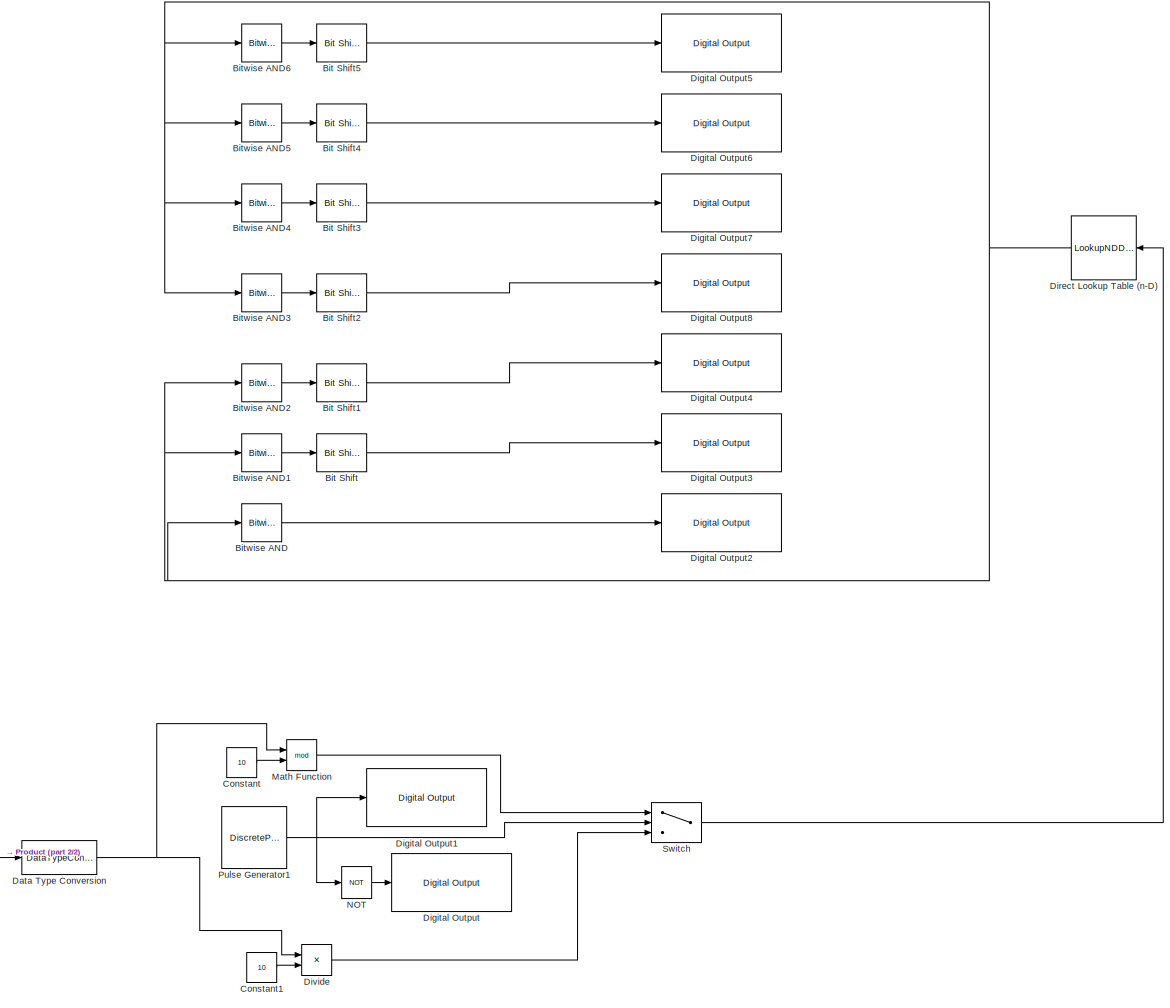
[diagram: root canvas - part 1/2, right side, full height]
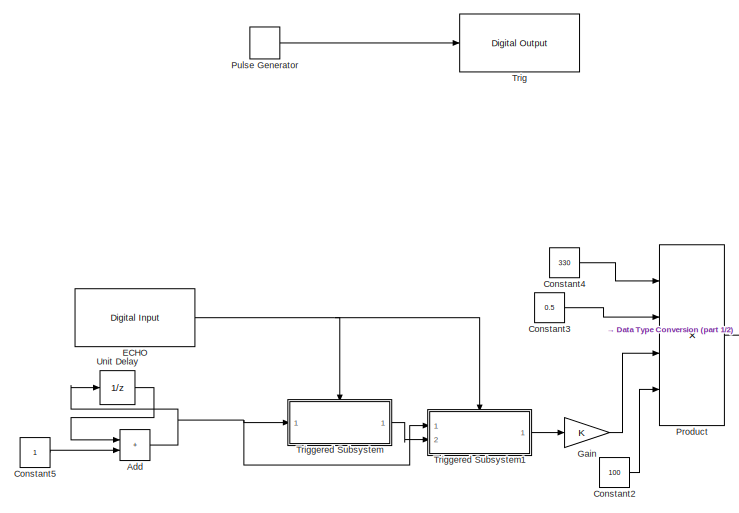
[diagram: root canvas - part 2/2, middle left region]
MODEL slx_f98a3cfd1c5f
KIND model
CONFIG AbsTol = auto
CONFIG EnableMultiTasking = on
CONFIG FixedStep = 0.00025
CONFIG MaxStep = auto
CONFIG MinStep = auto
CONFIG RelTol = 1e-3
CONFIG SampleTimeConstraint = Unconstrained
CONFIG SolverName = FixedStepAuto
CONFIG StartTime = 0.0
CONFIG StopTime = inf
BLOCK [Sum] Add
  IconShape = rectangular
  Ports = [2, 1]
BLOCK [Reference] Bit Shift  REF=hdlsllib/Logic and Bit
Operations/Bit Shift
  NameLocation = top
  Ports = [1, 1]
  SourceBlock = hdlsllib/Logic and Bit\nOperations/Bit Shift
  SourceProductBaseCode = SL
  SourceType = Bit Shift
BLOCK [Reference] Bit Shift1  REF=hdlsllib/Logic and Bit
Operations/Bit Shift
  NameLocation = top
  Ports = [1, 1]
  SourceBlock = hdlsllib/Logic and Bit\nOperations/Bit Shift
  SourceProductBaseCode = SL
  SourceType = Bit Shift
BLOCK [Reference] Bit Shift2  REF=hdlsllib/Logic and Bit
Operations/Bit Shift
  NameLocation = top
  Ports = [1, 1]
  SourceBlock = hdlsllib/Logic and Bit\nOperations/Bit Shift
  SourceProductBaseCode = SL
  SourceType = Bit Shift
BLOCK [Reference] Bit Shift3  REF=hdlsllib/Logic and Bit
Operations/Bit Shift
  NameLocation = top
  Ports = [1, 1]
  SourceBlock = hdlsllib/Logic and Bit\nOperations/Bit Shift
  SourceProductBaseCode = SL
  SourceType = Bit Shift
BLOCK [Reference] Bit Shift4  REF=hdlsllib/Logic and Bit
Operations/Bit Shift
  NameLocation = top
  Ports = [1, 1]
  SourceBlock = hdlsllib/Logic and Bit\nOperations/Bit Shift
  SourceProductBaseCode = SL
  SourceType = Bit Shift
BLOCK [Reference] Bit Shift5  REF=hdlsllib/Logic and Bit
Operations/Bit Shift
  NameLocation = top
  Ports = [1, 1]
  SourceBlock = hdlsllib/Logic and Bit\nOperations/Bit Shift
  SourceProductBaseCode = SL
  SourceType = Bit Shift
BLOCK [Reference] Bitwise AND  REF=simulink/Logic and Bit
Operations/Bitwise
Operator
  NameLocation = top
  Ports = [1, 1]
  SourceBlock = simulink/Logic and Bit\nOperations/Bitwise\nOperator
  SourceProductBaseCode = SL
  SourceType = Bitwise Operator
BLOCK [Reference] Bitwise AND1  REF=simulink/Logic and Bit
Operations/Bitwise
Operator
  NameLocation = top
  Ports = [1, 1]
  SourceBlock = simulink/Logic and Bit\nOperations/Bitwise\nOperator
  SourceProductBaseCode = SL
  SourceType = Bitwise Operator
BLOCK [Reference] Bitwise AND2  REF=simulink/Logic and Bit
Operations/Bitwise
Operator
  NameLocation = top
  Ports = [1, 1]
  SourceBlock = simulink/Logic and Bit\nOperations/Bitwise\nOperator
  SourceProductBaseCode = SL
  SourceType = Bitwise Operator
BLOCK [Reference] Bitwise AND3  REF=simulink/Logic and Bit
Operations/Bitwise
Operator
  NameLocation = top
  Ports = [1, 1]
  SourceBlock = simulink/Logic and Bit\nOperations/Bitwise\nOperator
  SourceProductBaseCode = SL
  SourceType = Bitwise Operator
BLOCK [Reference] Bitwise AND4  REF=simulink/Logic and Bit
Operations/Bitwise
Operator
  NameLocation = top
  Ports = [1, 1]
  SourceBlock = simulink/Logic and Bit\nOperations/Bitwise\nOperator
  SourceProductBaseCode = SL
  SourceType = Bitwise Operator
BLOCK [Reference] Bitwise AND5  REF=simulink/Logic and Bit
Operations/Bitwise
Operator
  NameLocation = top
  Ports = [1, 1]
  SourceBlock = simulink/Logic and Bit\nOperations/Bitwise\nOperator
  SourceProductBaseCode = SL
  SourceType = Bitwise Operator
BLOCK [Reference] Bitwise AND6  REF=simulink/Logic and Bit
Operations/Bitwise
Operator
  NameLocation = top
  Ports = [1, 1]
  SourceBlock = simulink/Logic and Bit\nOperations/Bitwise\nOperator
  SourceProductBaseCode = SL
  SourceType = Bitwise Operator
BLOCK [Constant] Constant
  Value = 10
BLOCK [Constant] Constant1
  Value = 10
BLOCK [Constant] Constant2
  Value = 100
BLOCK [Constant] Constant3
  Value = 0.5
BLOCK [Constant] Constant4
  Value = 330
BLOCK [Constant] Constant5
BLOCK [DataTypeConversion] Data Type Conversion
  RndMeth = Floor
  SaturateOnIntegerOverflow = off
BLOCK [Reference] Digital Output  REF=arduinolib/Digital Output
  Ports = [1]
  SourceBlock = arduinolib/Digital Output
  SourceProductBaseCode = ARDUINO
  SourceType = Arduino Digital Output
BLOCK [Reference] Digital Output1  REF=arduinolib/Digital Output
  Ports = [1]
  SourceBlock = arduinolib/Digital Output
  SourceProductBaseCode = ARDUINO
  SourceType = Arduino Digital Output
BLOCK [Reference] Digital Output2  REF=arduinolib/Digital Output
  NameLocation = top
  Ports = [1]
  SourceBlock = arduinolib/Digital Output
  SourceProductBaseCode = ARDUINO
  SourceType = Arduino Digital Output
BLOCK [Reference] Digital Output3  REF=arduinolib/Digital Output
  NameLocation = top
  Ports = [1]
  SourceBlock = arduinolib/Digital Output
  SourceProductBaseCode = ARDUINO
  SourceType = Arduino Digital Output
BLOCK [Reference] Digital Output4  REF=arduinolib/Digital Output
  NameLocation = top
  Ports = [1]
  SourceBlock = arduinolib/Digital Output
  SourceProductBaseCode = ARDUINO
  SourceType = Arduino Digital Output
BLOCK [Reference] Digital Output5  REF=arduinolib/Digital Output
  NameLocation = top
  Ports = [1]
  SourceBlock = arduinolib/Digital Output
  SourceProductBaseCode = ARDUINO
  SourceType = Arduino Digital Output
BLOCK [Reference] Digital Output6  REF=arduinolib/Digital Output
  NameLocation = top
  Ports = [1]
  SourceBlock = arduinolib/Digital Output
  SourceProductBaseCode = ARDUINO
  SourceType = Arduino Digital Output
BLOCK [Reference] Digital Output7  REF=arduinolib/Digital Output
  NameLocation = top
  Ports = [1]
  SourceBlock = arduinolib/Digital Output
  SourceProductBaseCode = ARDUINO
  SourceType = Arduino Digital Output
BLOCK [Reference] Digital Output8  REF=arduinolib/Digital Output
  NameLocation = top
  Ports = [1]
  SourceBlock = arduinolib/Digital Output
  SourceProductBaseCode = ARDUINO
  SourceType = Arduino Digital Output
BLOCK [LookupNDDirect] Direct Lookup Table (n-D)
  NumberOfTableDimensions = 1
  Ports = [1, 1]
  Table = [0xc0; 0xf9; 0xa4; 0xb0; 0x99; 0x92; 0x82; 0xf8; 0x80; 0x90]
  TableDataTypeStr = uint8
BLOCK [Product] Divide
  Inputs = */
  Ports = [2, 1]
BLOCK [Reference] ECHO  REF=arduinolib/Digital Input
  Ports = [0, 1]
  SourceBlock = arduinolib/Digital Input
  SourceProductBaseCode = ARDUINO
  SourceType = Arduino Digital Input
BLOCK [Gain] Gain
BLOCK [Math] Math Function
  Operator = mod
  Ports = [2, 1]
BLOCK [Logic] NOT
  AllPortsSameDT = off
  IconShape = distinctive
  Operator = NOT
  OutDataTypeStr = boolean
  Ports = [1, 1]
BLOCK [Product] Product
  Inputs = 4
  Ports = [4, 1]
BLOCK [DiscretePulseGenerator] Pulse Generator
  Period = 0.01
  Ports = [0, 1]
  PulseType = Time based
  PulseWidth = 10
BLOCK [DiscretePulseGenerator] Pulse Generator1
  Period = 0.002
  Ports = [0, 1]
  PulseType = Time based
  PulseWidth = 50
BLOCK [Switch] Switch
  Criteria = u2 > Threshold
  InputSameDT = off
  SaturateOnIntegerOverflow = off
BLOCK [Reference] Trig  REF=arduinolib/Digital Output
  Ports = [1]
  SourceBlock = arduinolib/Digital Output
  SourceProductBaseCode = ARDUINO
  SourceType = Arduino Digital Output
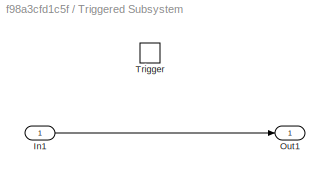
BLOCK [SubSystem] Triggered Subsystem
  Ports = [1, 1, 0, 1]
  RequestExecContextInheritance = off
  TreatAsAtomicUnit = on
BLOCK [Inport] Triggered Subsystem/In1
BLOCK [Outport] Triggered Subsystem/Out1
BLOCK [TriggerPort] Triggered Subsystem/Trigger
  Ports = []
  StatesWhenEnabling = held
  VariantControl = (inherit)
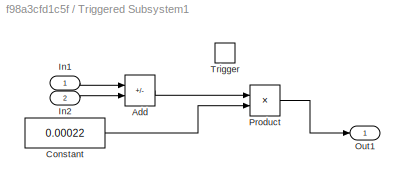
BLOCK [SubSystem] Triggered Subsystem1
  Ports = [2, 1, 0, 1]
  RequestExecContextInheritance = off
  TreatAsAtomicUnit = on
BLOCK [Sum] Triggered Subsystem1/Add
  IconShape = rectangular
  Inputs = +-
  Ports = [2, 1]
BLOCK [Constant] Triggered Subsystem1/Constant
  SampleTime = -1
  Value = 0.00022
  VectorParams1D = off
BLOCK [Inport] Triggered Subsystem1/In1
BLOCK [Inport] Triggered Subsystem1/In2
  Port = 2
BLOCK [Outport] Triggered Subsystem1/Out1
BLOCK [Product] Triggered Subsystem1/Product
  Ports = [2, 1]
BLOCK [TriggerPort] Triggered Subsystem1/Trigger
  Ports = []
  StatesWhenEnabling = held
  TriggerType = falling
  VariantControl = (inherit)
BLOCK [UnitDelay] Unit Delay
  HasFrameUpgradeWarning = on
  SampleTime = -1
NET Add:1 -> Triggered Subsystem1:1, Triggered Subsystem:1, Unit Delay:1
LINE Bit Shift1:1 -> Digital Output4:1
LINE Bit Shift2:1 -> Digital Output8:1
LINE Bit Shift3:1 -> Digital Output7:1
LINE Bit Shift4:1 -> Digital Output6:1
LINE Bit Shift5:1 -> Digital Output5:1
LINE Bit Shift:1 -> Digital Output3:1
LINE Bitwise AND1:1 -> Bit Shift:1
LINE Bitwise AND2:1 -> Bit Shift1:1
LINE Bitwise AND3:1 -> Bit Shift2:1
LINE Bitwise AND4:1 -> Bit Shift3:1
LINE Bitwise AND5:1 -> Bit Shift4:1
LINE Bitwise AND6:1 -> Bit Shift5:1
LINE Bitwise AND:1 -> Digital Output2:1
LINE Constant1:1 -> Divide:2
LINE Constant2:1 -> Product:4
LINE Constant3:1 -> Product:2
LINE Constant4:1 -> Product:1
LINE Constant5:1 -> Add:2
LINE Constant:1 -> Math Function:2
NET Data Type Conversion:1 -> Divide:1, Math Function:1
NET Direct Lookup Table (n-D):1 -> Bitwise AND1:1, Bitwise AND2:1, Bitwise AND3:1, Bitwise AND4:1, Bitwise AND5:1, Bitwise AND6:1, Bitwise AND:1
LINE Divide:1 -> Switch:3
NET ECHO:1 -> Triggered Subsystem1:trigger, Triggered Subsystem:trigger
LINE Gain:1 -> Product:3
LINE Math Function:1 -> Switch:1
LINE NOT:1 -> Digital Output:1
LINE Product:1 -> Data Type Conversion:1
NET Pulse Generator1:1 -> Digital Output1:1, NOT:1, Switch:2
LINE Pulse Generator:1 -> Trig:1
LINE Switch:1 -> Direct Lookup Table (n-D):1
LINE Triggered Subsystem/In1:1 -> Triggered Subsystem/Out1:1
LINE Triggered Subsystem1/Add:1 -> Triggered Subsystem1/Product:1
LINE Triggered Subsystem1/Constant:1 -> Triggered Subsystem1/Product:2
LINE Triggered Subsystem1/In1:1 -> Triggered Subsystem1/Add:1
LINE Triggered Subsystem1/In2:1 -> Triggered Subsystem1/Add:2
LINE Triggered Subsystem1/Product:1 -> Triggered Subsystem1/Out1:1
LINE Triggered Subsystem1:1 -> Gain:1
LINE Triggered Subsystem:1 -> Triggered Subsystem1:2
LINE Unit Delay:1 -> Add:1
note: NET lines group one-source signal fan-out (src -> all destinations, sorted); 1:1 wires keep LINE
